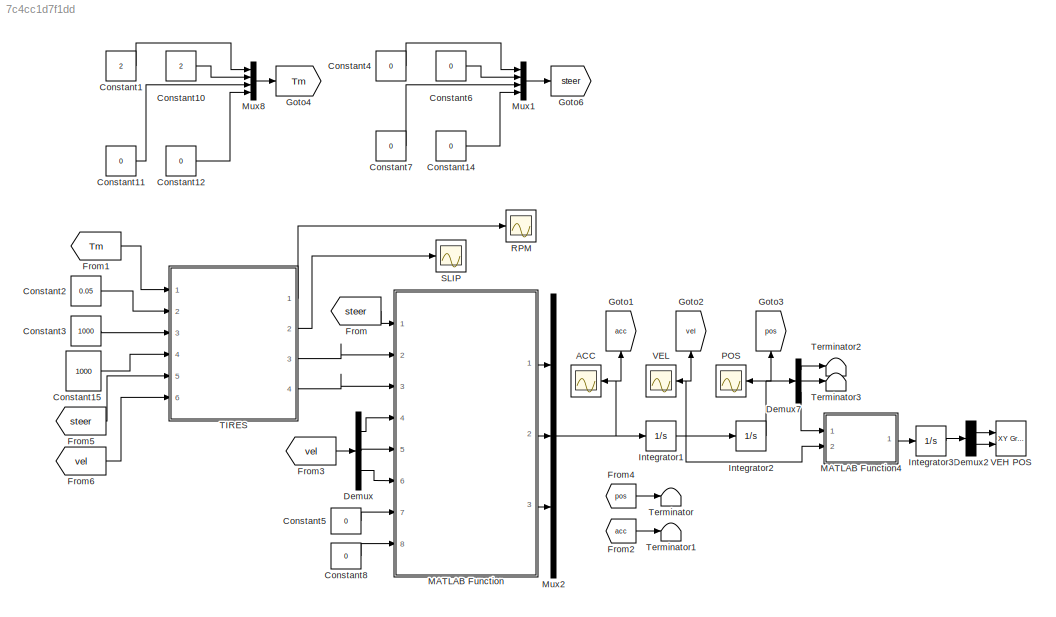
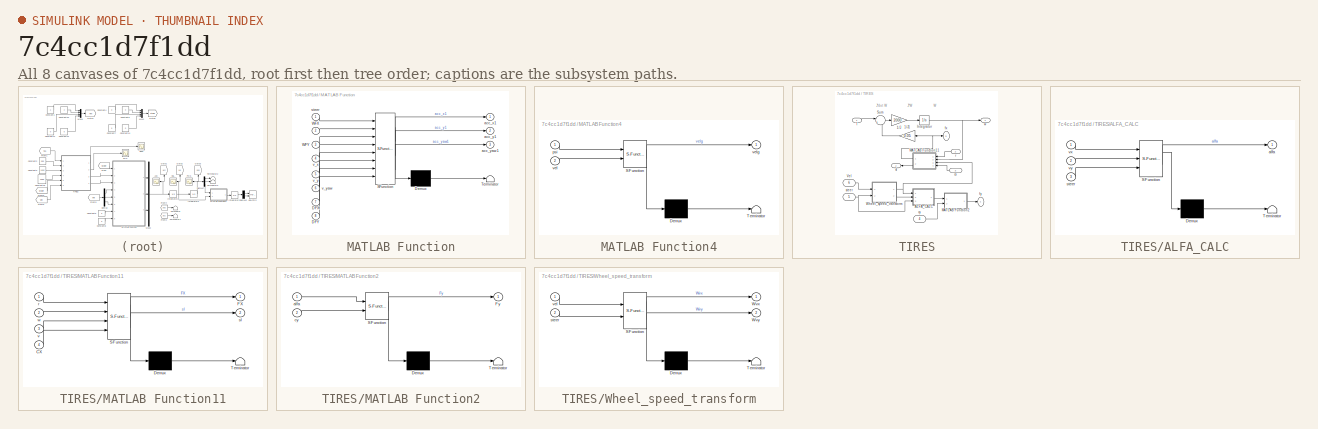
[diagram: thumbnail index - all 8 canvases of the model, root first then tree order]
MODEL slx_7c4cc1d7f1dd
KIND model
BLOCK [Scope] ACC
  DataFormat = StructureWithTime
  Decimation = 1
  Grid = on
  LimitDataPoints = off
  MaxDataPoints = 5000
  NumInputPorts = 1
  Ports = [1]
  SampleInput = off
  SampleTime = -1
  SaveName = ScopeData1
  SaveToWorkspace = off
  ShowLegends = off
  TickLabels = OneTimeTick
  TimeRange = auto
  YMax = 49.91053
  YMin = -338.87895
  ZoomMode = on
BLOCK [Constant] Constant1
  Value = 2
BLOCK [Constant] Constant10
  Value = 2
BLOCK [Constant] Constant11
  Value = 0
BLOCK [Constant] Constant12
  Value = 0
BLOCK [Constant] Constant14
  Value = 0
BLOCK [Constant] Constant15
  Value = 1000
BLOCK [Constant] Constant2
  Value = 0.05
BLOCK [Constant] Constant3
  Value = 1000
BLOCK [Constant] Constant4
  Value = 0
BLOCK [Constant] Constant5
  Value = 0
BLOCK [Constant] Constant6
  Value = 0
BLOCK [Constant] Constant7
  Value = 0
BLOCK [Constant] Constant8
  Value = 0
BLOCK [Demux] Demux
  DisplayOption = bar
  Outputs = 3
  Ports = [1, 3]
BLOCK [Demux] Demux2
  DisplayOption = bar
  Outputs = 2
  Ports = [1, 2]
BLOCK [Demux] Demux7
  DisplayOption = bar
  Outputs = 3
  Ports = [1, 3]
BLOCK [From] From
  GotoTag = steer
BLOCK [From] From1
  GotoTag = Tm
BLOCK [From] From2
  GotoTag = acc
BLOCK [From] From3
  GotoTag = vel
BLOCK [From] From4
  GotoTag = pos
BLOCK [From] From5
  GotoTag = steer
BLOCK [From] From6
  GotoTag = vel
BLOCK [Goto] Goto1
  GotoTag = acc
BLOCK [Goto] Goto2
  GotoTag = vel
BLOCK [Goto] Goto3
  GotoTag = pos
BLOCK [Goto] Goto4
  GotoTag = Tm
BLOCK [Goto] Goto6
  GotoTag = steer
BLOCK [Integrator] Integrator1
  InitialCondition = [0.1 0 0]
  LowerSaturationLimit = -10^6
  Ports = [1, 1]
  UpperSaturationLimit = 10^6
  ZeroCross = off
BLOCK [Integrator] Integrator2
  InitialCondition = [0 0 0]
  Ports = [1, 1]
  ZeroCross = off
BLOCK [Integrator] Integrator3
  InitialCondition = [0 0]
  Ports = [1, 1]
  ZeroCross = off
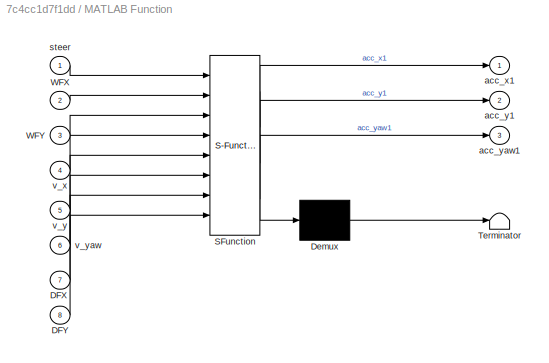
BLOCK [SubSystem] MATLAB Function
  ErrorFcn = Stateflow.Translate.translate
  FunctionWithSeparateData = off
  MaskHideContents = off
  MinAlgLoopOccurrences = off
  Opaque = off
  PermitHierarchicalResolution = ParametersOnly
  Ports = [8, 3]
  PropExecContextOutsideSubsystem = off
  RTWSystemCode = Auto
  RequestExecContextInheritance = off
  SFBlockType = MATLAB Function
  TreatAsAtomicUnit = on
  Variant = off
  VariantControl = Variant1
BLOCK [Demux] MATLAB Function/ Demux 
  Outputs = 1
  Ports = [1, 1]
BLOCK [S-Function] MATLAB Function/ SFunction 
  EnableBusSupport = on
  FunctionName = sf_sfun
  PortCounts = [8 4]
  Ports = [8, 4]
  SFunctionDeploymentMode = off
  Tag = Stateflow S-Function model2_2 2
BLOCK [Terminator] MATLAB Function/ Terminator 
BLOCK [Inport] MATLAB Function/DFX
  IconDisplay = Port number
  Port = 7
BLOCK [Inport] MATLAB Function/DFY
  IconDisplay = Port number
  Port = 8
BLOCK [Inport] MATLAB Function/WFX
  IconDisplay = Port number
  Port = 2
BLOCK [Inport] MATLAB Function/WFY
  IconDisplay = Port number
  Port = 3
BLOCK [Outport] MATLAB Function/acc_x1
  IconDisplay = Port number
BLOCK [Outport] MATLAB Function/acc_y1
  IconDisplay = Port number
  Port = 2
BLOCK [Outport] MATLAB Function/acc_yaw1
  IconDisplay = Port number
  Port = 3
BLOCK [Inport] MATLAB Function/steer
  IconDisplay = Port number
BLOCK [Inport] MATLAB Function/v_x
  IconDisplay = Port number
  Port = 4
BLOCK [Inport] MATLAB Function/v_y
  IconDisplay = Port number
  Port = 5
BLOCK [Inport] MATLAB Function/v_yaw
  IconDisplay = Port number
  Port = 6
BLOCK [SubSystem] MATLAB Function4
  ErrorFcn = Stateflow.Translate.translate
  FunctionWithSeparateData = off
  MaskHideContents = off
  MinAlgLoopOccurrences = off
  Opaque = off
  PermitHierarchicalResolution = ParametersOnly
  Ports = [2, 1]
  PropExecContextOutsideSubsystem = off
  RTWSystemCode = Auto
  RequestExecContextInheritance = off
  SFBlockType = MATLAB Function
  TreatAsAtomicUnit = on
  Variant = off
BLOCK [Demux] MATLAB Function4/ Demux 
  Outputs = 1
  Ports = [1, 1]
BLOCK [S-Function] MATLAB Function4/ SFunction 
  EnableBusSupport = on
  FunctionName = sf_sfun
  PortCounts = [2 2]
  Ports = [2, 2]
  SFunctionDeploymentMode = off
  Tag = Stateflow S-Function model2_2 5
BLOCK [Terminator] MATLAB Function4/ Terminator 
BLOCK [Inport] MATLAB Function4/psi
  IconDisplay = Port number
BLOCK [Inport] MATLAB Function4/vel
  IconDisplay = Port number
  Port = 2
BLOCK [Outport] MATLAB Function4/velg
  IconDisplay = Port number
BLOCK [Mux] Mux1
  DisplayOption = bar
  Ports = [4, 1]
BLOCK [Mux] Mux2
  DisplayOption = bar
  Inputs = 3
  Ports = [3, 1]
BLOCK [Mux] Mux8
  DisplayOption = bar
  Ports = [4, 1]
BLOCK [Scope] POS
  DataFormat = StructureWithTime
  Decimation = 1
  Grid = on
  LimitDataPoints = off
  MaxDataPoints = 5000
  NumInputPorts = 1
  Ports = [1]
  SampleInput = off
  SampleTime = -1
  SaveName = ScopeData
  SaveToWorkspace = off
  ShowLegends = off
  TickLabels = OneTimeTick
  TimeRange = auto
  YMax = 285.6926
  YMin = -31.74362
  ZoomMode = on
BLOCK [Scope] RPM
  DataFormat = StructureWithTime
  Decimation = 1
  Grid = on
  LimitDataPoints = off
  MaxDataPoints = 5000
  NumInputPorts = 1
  Ports = [1]
  SampleInput = off
  SampleTime = -1
  SaveName = ScopeData3
  SaveToWorkspace = off
  ShowLegends = off
  TickLabels = OneTimeTick
  TimeRange = auto
  YMax = 390.08746
  YMin = -43.23194
  ZoomMode = on
BLOCK [Scope] SLIP
  DataFormat = StructureWithTime
  Decimation = 1
  Grid = on
  LimitDataPoints = off
  MaxDataPoints = 5000
  NumInputPorts = 1
  Ports = [1]
  SampleInput = off
  SampleTime = -1
  SaveName = ScopeData4
  SaveToWorkspace = off
  ShowLegends = off
  TickLabels = OneTimeTick
  TimeRange = auto
  YMax = 0.72366
  YMin = -3.17962
  ZoomMode = on
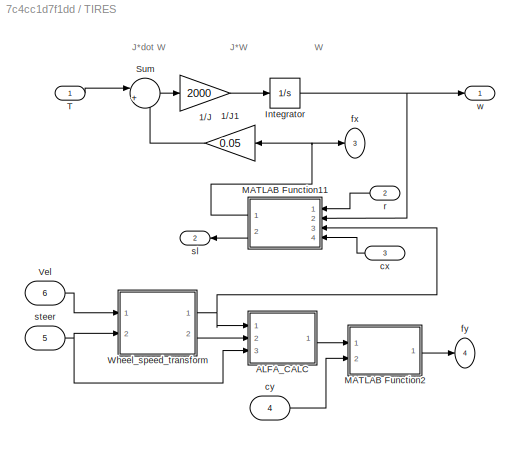
BLOCK [SubSystem] TIRES
  FunctionWithSeparateData = off
  MaskHideContents = off
  MinAlgLoopOccurrences = off
  Opaque = off
  Ports = [6, 4]
  PropExecContextOutsideSubsystem = off
  RTWSystemCode = Auto
  RequestExecContextInheritance = off
  Variant = off
BLOCK [Gain] TIRES/1//J
  Gain = 2000
  OutDataTypeStr = Inherit: Inherit via internal rule
  ParamDataTypeStr = Inherit: Inherit via internal rule
  SaturateOnIntegerOverflow = off
BLOCK [Gain] TIRES/1//J1
  Gain = 0.05
  OutDataTypeStr = Inherit: Inherit via internal rule
  ParamDataTypeStr = Inherit: Inherit via internal rule
  SaturateOnIntegerOverflow = off
BLOCK [SubSystem] TIRES/ALFA_CALC
  ErrorFcn = Stateflow.Translate.translate
  FunctionWithSeparateData = off
  MaskHideContents = off
  MinAlgLoopOccurrences = off
  Opaque = off
  PermitHierarchicalResolution = ParametersOnly
  Ports = [3, 1]
  PropExecContextOutsideSubsystem = off
  RTWSystemCode = Auto
  RequestExecContextInheritance = off
  SFBlockType = MATLAB Function
  TreatAsAtomicUnit = on
  Variant = off
BLOCK [Demux] TIRES/ALFA_CALC/ Demux 
  Outputs = 1
  Ports = [1, 1]
BLOCK [S-Function] TIRES/ALFA_CALC/ SFunction 
  EnableBusSupport = on
  FunctionName = sf_sfun
  PortCounts = [3 2]
  Ports = [3, 2]
  SFunctionDeploymentMode = off
  Tag = Stateflow S-Function model2_2 4
BLOCK [Terminator] TIRES/ALFA_CALC/ Terminator 
BLOCK [Outport] TIRES/ALFA_CALC/alfa
  IconDisplay = Port number
BLOCK [Inport] TIRES/ALFA_CALC/steer
  IconDisplay = Port number
  Port = 3
BLOCK [Inport] TIRES/ALFA_CALC/vx
  IconDisplay = Port number
BLOCK [Inport] TIRES/ALFA_CALC/vy
  IconDisplay = Port number
  Port = 2
BLOCK [Integrator] TIRES/Integrator
  InitialCondition = [0.1 0.1 0.1 0.1]
  Ports = [1, 1]
  ZeroCross = off
BLOCK [SubSystem] TIRES/MATLAB Function11
  ErrorFcn = Stateflow.Translate.translate
  FunctionWithSeparateData = off
  MaskHideContents = off
  MinAlgLoopOccurrences = off
  Opaque = off
  PermitHierarchicalResolution = ParametersOnly
  Ports = [4, 2]
  PropExecContextOutsideSubsystem = off
  RTWSystemCode = Auto
  RequestExecContextInheritance = off
  SFBlockType = MATLAB Function
  TreatAsAtomicUnit = on
  Variant = off
BLOCK [Demux] TIRES/MATLAB Function11/ Demux 
  Outputs = 1
  Ports = [1, 1]
BLOCK [S-Function] TIRES/MATLAB Function11/ SFunction 
  EnableBusSupport = on
  FunctionName = sf_sfun
  PortCounts = [4 3]
  Ports = [4, 3]
  SFunctionDeploymentMode = off
  Tag = Stateflow S-Function model2_2 13
BLOCK [Terminator] TIRES/MATLAB Function11/ Terminator 
BLOCK [Inport] TIRES/MATLAB Function11/CX
  IconDisplay = Port number
  Port = 4
BLOCK [Outport] TIRES/MATLAB Function11/FX
  IconDisplay = Port number
BLOCK [Inport] TIRES/MATLAB Function11/r
  IconDisplay = Port number
BLOCK [Outport] TIRES/MATLAB Function11/sl
  IconDisplay = Port number
  Port = 2
BLOCK [Inport] TIRES/MATLAB Function11/v
  IconDisplay = Port number
  Port = 3
BLOCK [Inport] TIRES/MATLAB Function11/w
  IconDisplay = Port number
  Port = 2
BLOCK [SubSystem] TIRES/MATLAB Function2
  ErrorFcn = Stateflow.Translate.translate
  FunctionWithSeparateData = off
  MaskHideContents = off
  MinAlgLoopOccurrences = off
  Opaque = off
  PermitHierarchicalResolution = ParametersOnly
  Ports = [2, 1]
  PropExecContextOutsideSubsystem = off
  RTWSystemCode = Auto
  RequestExecContextInheritance = off
  SFBlockType = MATLAB Function
  TreatAsAtomicUnit = on
  Variant = off
BLOCK [Demux] TIRES/MATLAB Function2/ Demux 
  Outputs = 1
  Ports = [1, 1]
BLOCK [S-Function] TIRES/MATLAB Function2/ SFunction 
  EnableBusSupport = on
  FunctionName = sf_sfun
  PortCounts = [2 2]
  Ports = [2, 2]
  SFunctionDeploymentMode = off
  Tag = Stateflow S-Function model2_2 3
BLOCK [Terminator] TIRES/MATLAB Function2/ Terminator 
BLOCK [Outport] TIRES/MATLAB Function2/Fy
  IconDisplay = Port number
BLOCK [Inport] TIRES/MATLAB Function2/alfa
  IconDisplay = Port number
BLOCK [Inport] TIRES/MATLAB Function2/cy
  IconDisplay = Port number
  Port = 2
BLOCK [Sum] TIRES/Sum
  IconShape = round
  InputSameDT = off
  Inputs = |+-
  OutDataTypeStr = Inherit: Inherit via internal rule
  Ports = [2, 1]
  SaturateOnIntegerOverflow = off
BLOCK [Inport] TIRES/T
  IconDisplay = Port number
BLOCK [Inport] TIRES/Vel
  IconDisplay = Port number
  Port = 6
BLOCK [SubSystem] TIRES/Wheel_speed_transform
  ErrorFcn = Stateflow.Translate.translate
  FunctionWithSeparateData = off
  MaskHideContents = off
  MinAlgLoopOccurrences = off
  Opaque = off
  PermitHierarchicalResolution = ParametersOnly
  Ports = [2, 2]
  PropExecContextOutsideSubsystem = off
  RTWSystemCode = Auto
  RequestExecContextInheritance = off
  SFBlockType = MATLAB Function
  TreatAsAtomicUnit = on
  Variant = off
BLOCK [Demux] TIRES/Wheel_speed_transform/ Demux 
  Outputs = 1
  Ports = [1, 1]
BLOCK [S-Function] TIRES/Wheel_speed_transform/ SFunction 
  EnableBusSupport = on
  FunctionName = sf_sfun
  PortCounts = [2 3]
  Ports = [2, 3]
  SFunctionDeploymentMode = off
  Tag = Stateflow S-Function model2_2 6
BLOCK [Terminator] TIRES/Wheel_speed_transform/ Terminator 
BLOCK [Outport] TIRES/Wheel_speed_transform/Wvx
  IconDisplay = Port number
BLOCK [Outport] TIRES/Wheel_speed_transform/Wvy
  IconDisplay = Port number
  Port = 2
BLOCK [Inport] TIRES/Wheel_speed_transform/steer
  IconDisplay = Port number
  Port = 2
BLOCK [Inport] TIRES/Wheel_speed_transform/vel
  IconDisplay = Port number
BLOCK [Inport] TIRES/cx
  IconDisplay = Port number
  Port = 3
BLOCK [Inport] TIRES/cy
  IconDisplay = Port number
  Port = 4
BLOCK [Outport] TIRES/fx
  IconDisplay = Port number
  Port = 3
BLOCK [Outport] TIRES/fy
  IconDisplay = Port number
  Port = 4
BLOCK [Inport] TIRES/r
  IconDisplay = Port number
  Port = 2
BLOCK [Outport] TIRES/sl
  IconDisplay = Port number
  Port = 2
BLOCK [Inport] TIRES/steer
  IconDisplay = Port number
  Port = 5
BLOCK [Outport] TIRES/w
  IconDisplay = Port number
BLOCK [Terminator] Terminator
BLOCK [Terminator] Terminator1
BLOCK [Terminator] Terminator2
BLOCK [Terminator] Terminator3
BLOCK [Reference] VEH POS  REF=simulink/Sinks/XY Graph
  Ports = [2]
  SourceBlock = simulink/Sinks/XY Graph
  SourceType = XY scope.
  st = -1
  xmax = 50
  xmin = -50
  ymax = 50
  ymin = -50
BLOCK [Scope] VEL
  DataFormat = StructureWithTime
  Decimation = 1
  Grid = on
  LimitDataPoints = off
  MaxDataPoints = 5000
  NumInputPorts = 1
  Ports = [1]
  SampleInput = off
  SampleTime = -1
  SaveName = ScopeData2
  SaveToWorkspace = off
  ShowLegends = off
  TickLabels = OneTimeTick
  TimeRange = auto
  YMax = 3.85237
  YMin = -0.43037
  ZoomMode = on
ANNOTATION TIRES: J*W
ANNOTATION TIRES: J*dot W
ANNOTATION TIRES: W
LINE Constant10:1 -> Mux8:2
LINE Constant11:1 -> Mux8:3
LINE Constant12:1 -> Mux8:4
LINE Constant14:1 -> Mux1:4
LINE Constant15:1 -> TIRES:4
LINE Constant1:1 -> Mux8:1
LINE Constant2:1 -> TIRES:2
LINE Constant3:1 -> TIRES:3
LINE Constant4:1 -> Mux1:1
LINE Constant5:1 -> MATLAB Function:7
LINE Constant6:1 -> Mux1:2
LINE Constant7:1 -> Mux1:3
LINE Constant8:1 -> MATLAB Function:8
LINE Demux2:1 -> VEH POS:1
LINE Demux2:2 -> VEH POS:2
LINE Demux7:1 -> Terminator2:1
LINE Demux7:2 -> Terminator3:1
LINE Demux7:3 -> MATLAB Function4:1
LINE Demux:1 -> MATLAB Function:4
LINE Demux:2 -> MATLAB Function:5
LINE Demux:3 -> MATLAB Function:6
LINE From1:1 -> TIRES:1
LINE From2:1 -> Terminator1:1
LINE From3:1 -> Demux:1
LINE From4:1 -> Terminator:1
LINE From5:1 -> TIRES:5
LINE From6:1 -> TIRES:6
LINE From:1 -> MATLAB Function:1
NET Integrator1:1 -> Goto2:1, Integrator2:1, MATLAB Function4:2, VEL:1
NET Integrator2:1 -> Demux7:1, Goto3:1, POS:1
LINE Integrator3:1 -> Demux2:1
LINE MATLAB Function4:1 -> Integrator3:1
LINE MATLAB Function:1 -> Mux2:1
LINE MATLAB Function:2 -> Mux2:2
LINE MATLAB Function:3 -> Mux2:3
LINE Mux1:1 -> Goto6:1
NET Mux2:1 -> ACC:1, Goto1:1, Integrator1:1
LINE Mux8:1 -> Goto4:1
LINE TIRES/1//J1:1 -> TIRES/Sum:2
LINE TIRES/1//J:1 -> TIRES/Integrator:1
LINE TIRES/ALFA_CALC:1 -> TIRES/MATLAB Function2:1
NET TIRES/Integrator:1 -> TIRES/MATLAB Function11:2, TIRES/w:1
NET TIRES/MATLAB Function11:1 -> TIRES/1//J1:1, TIRES/fx:1
LINE TIRES/MATLAB Function11:2 -> TIRES/sl:1
LINE TIRES/MATLAB Function2:1 -> TIRES/fy:1
LINE TIRES/Sum:1 -> TIRES/1//J:1
LINE TIRES/T:1 -> TIRES/Sum:1
LINE TIRES/Vel:1 -> TIRES/Wheel_speed_transform:1
NET TIRES/Wheel_speed_transform:1 -> TIRES/ALFA_CALC:1, TIRES/MATLAB Function11:3
LINE TIRES/Wheel_speed_transform:2 -> TIRES/ALFA_CALC:2
LINE TIRES/cx:1 -> TIRES/MATLAB Function11:4
LINE TIRES/cy:1 -> TIRES/MATLAB Function2:2
LINE TIRES/r:1 -> TIRES/MATLAB Function11:1
NET TIRES/steer:1 -> TIRES/ALFA_CALC:3, TIRES/Wheel_speed_transform:2
LINE TIRES:1 -> RPM:1
LINE TIRES:2 -> SLIP:1
LINE TIRES:3 -> MATLAB Function:2
LINE TIRES:4 -> MATLAB Function:3
note: NET lines group one-source signal fan-out (src -> all destinations, sorted); 1:1 wires keep LINE
